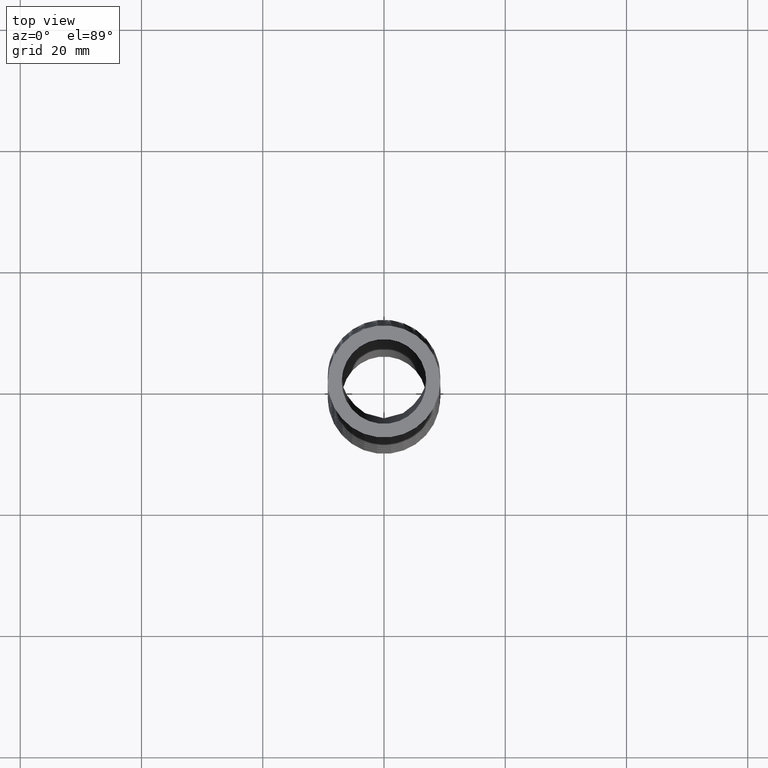
[diagram: clean part render]
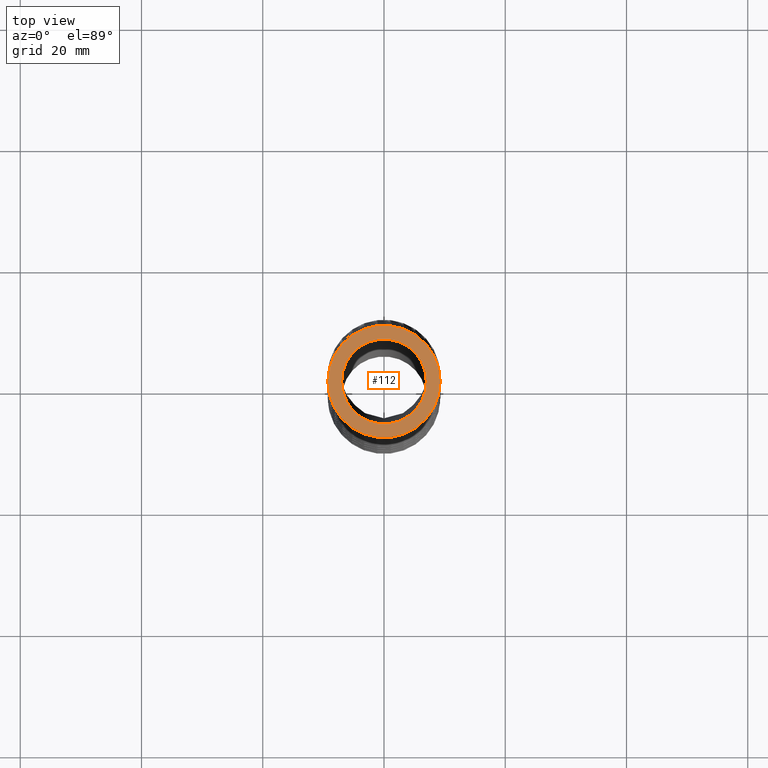
[diagram: same view with one face highlighted and labeled with its STEP entity id]
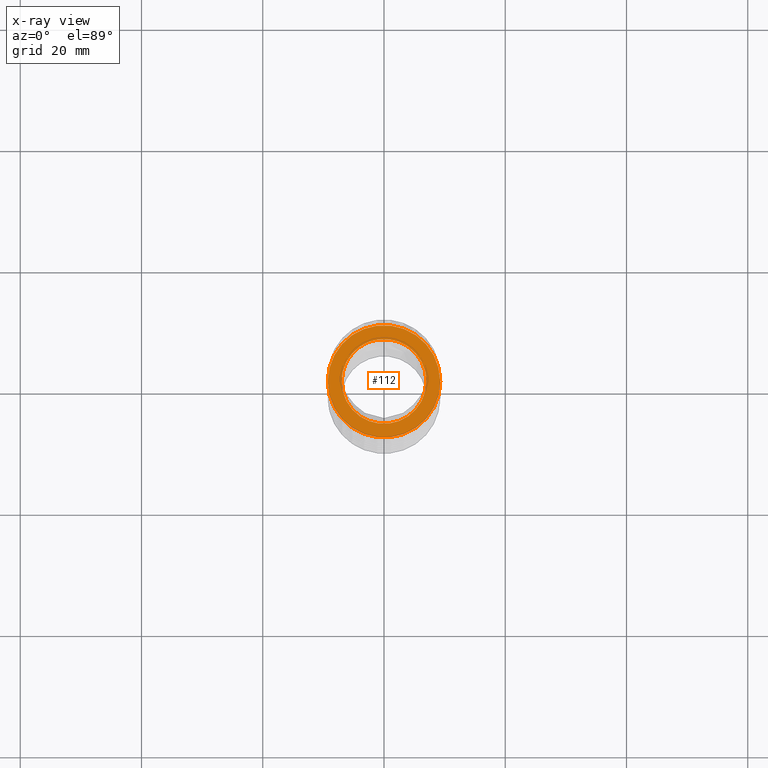
[diagram: x-ray of the same camera — body ghosted, the highlighted face saturated]
A machine part, top view. The second image highlights one B-rep face of the part: STEP entity #112.
The next image is the same camera in x-ray: the body ghosted, the highlighted face saturated — about 0% of this face is hidden behind the body in this view.
In plain terms, the highlighted planar face has unit normal (0, 0, 1).
Its self-contained STEP definition (entity closure, byte-faithful):
#78 = EDGE_CURVE ( 'NONE', #306, #308, #1846, .T. ) ;
#102 = ORIENTED_EDGE ( 'NONE', *, *, #307, .T. ) ;
#106 = EDGE_CURVE ( 'NONE', #219, #218, #2152, .T. ) ;
#107 = ORIENTED_EDGE ( 'NONE', *, *, #106, .F. ) ;
#108 = EDGE_LOOP ( 'NONE', ( #110, #107 ) ) ;
#109 = ORIENTED_EDGE ( 'NONE', *, *, #78, .T. ) ;
#110 = ORIENTED_EDGE ( 'NONE', *, *, #204, .F. ) ;
#111 = EDGE_LOOP ( 'NONE', ( #109, #102 ) ) ;
#112 = ADVANCED_FACE ( 'NONE', ( #2153, #2318 ), #2364, .T. ) ;
#204 = EDGE_CURVE ( 'NONE', #218, #219, #3266, .T. ) ;
#218 = VERTEX_POINT ( 'NONE', #3359 ) ;
#219 = VERTEX_POINT ( 'NONE', #3358 ) ;
#306 = VERTEX_POINT ( 'NONE', #3721 ) ;
#307 = EDGE_CURVE ( 'NONE', #308, #306, #3720, .T. ) ;
#308 = VERTEX_POINT ( 'NONE', #3715 ) ;
#1842 = DIRECTION ( 'NONE',  ( 1.000000000000000000, 0.0000000000000000000, 0.0000000000000000000 ) ) ;
#1843 = DIRECTION ( 'NONE',  ( 0.0000000000000000000, 0.0000000000000000000, 1.000000000000000000 ) ) ;
#1844 = CARTESIAN_POINT ( 'NONE',  ( 0.0000000000000000000, 0.0000000000000000000, 0.0000000000000000000 ) ) ;
#1845 = AXIS2_PLACEMENT_3D ( 'NONE', #1844, #1843, #1842 ) ;
#1846 = CIRCLE ( 'NONE', #1845, 0.3649999999999999900 ) ;
#2148 = DIRECTION ( 'NONE',  ( 1.000000000000000000, 0.0000000000000000000, 0.0000000000000000000 ) ) ;
#2149 = DIRECTION ( 'NONE',  ( 0.0000000000000000000, 0.0000000000000000000, 1.000000000000000000 ) ) ;
#2150 = CARTESIAN_POINT ( 'NONE',  ( 0.0000000000000000000, 0.0000000000000000000, 0.0000000000000000000 ) ) ;
#2151 = AXIS2_PLACEMENT_3D ( 'NONE', #2150, #2149, #2148 ) ;
#2152 = CIRCLE ( 'NONE', #2151, 0.2750000000000000200 ) ;
#2153 = FACE_BOUND ( 'NONE', #108, .T. ) ;
#2318 = FACE_OUTER_BOUND ( 'NONE', #111, .T. ) ;
#2360 = DIRECTION ( 'NONE',  ( 1.000000000000000000, 0.0000000000000000000, 0.0000000000000000000 ) ) ;
#2361 = DIRECTION ( 'NONE',  ( 0.0000000000000000000, 0.0000000000000000000, 1.000000000000000000 ) ) ;
#2362 = CARTESIAN_POINT ( 'NONE',  ( 0.0000000000000000000, 0.0000000000000000000, 0.0000000000000000000 ) ) ;
#2363 = AXIS2_PLACEMENT_3D ( 'NONE', #2362, #2361, #2360 ) ;
#2364 = PLANE ( 'NONE',  #2363 ) ;
#3262 = DIRECTION ( 'NONE',  ( 1.000000000000000000, 0.0000000000000000000, 0.0000000000000000000 ) ) ;
#3263 = DIRECTION ( 'NONE',  ( 0.0000000000000000000, 0.0000000000000000000, 1.000000000000000000 ) ) ;
#3264 = CARTESIAN_POINT ( 'NONE',  ( 0.0000000000000000000, 0.0000000000000000000, 0.0000000000000000000 ) ) ;
#3265 = AXIS2_PLACEMENT_3D ( 'NONE', #3264, #3263, #3262 ) ;
#3266 = CIRCLE ( 'NONE', #3265, 0.2750000000000000200 ) ;
#3358 = CARTESIAN_POINT ( 'NONE',  ( -0.2750000000000000200, 3.367778697655221900E-017, 0.0000000000000000000 ) ) ;
#3359 = CARTESIAN_POINT ( 'NONE',  ( 0.2750000000000000200, 0.0000000000000000000, 0.0000000000000000000 ) ) ;
#3715 = CARTESIAN_POINT ( 'NONE',  ( -0.3649999999999999900, 4.469960816887839200E-017, 0.0000000000000000000 ) ) ;
#3716 = DIRECTION ( 'NONE',  ( 1.000000000000000000, 0.0000000000000000000, 0.0000000000000000000 ) ) ;
#3717 = DIRECTION ( 'NONE',  ( 0.0000000000000000000, 0.0000000000000000000, 1.000000000000000000 ) ) ;
#3718 = CARTESIAN_POINT ( 'NONE',  ( 0.0000000000000000000, 0.0000000000000000000, 0.0000000000000000000 ) ) ;
#3719 = AXIS2_PLACEMENT_3D ( 'NONE', #3718, #3717, #3716 ) ;
#3720 = CIRCLE ( 'NONE', #3719, 0.3649999999999999900 ) ;
#3721 = CARTESIAN_POINT ( 'NONE',  ( 0.3649999999999999900, 0.0000000000000000000, 0.0000000000000000000 ) ) ;